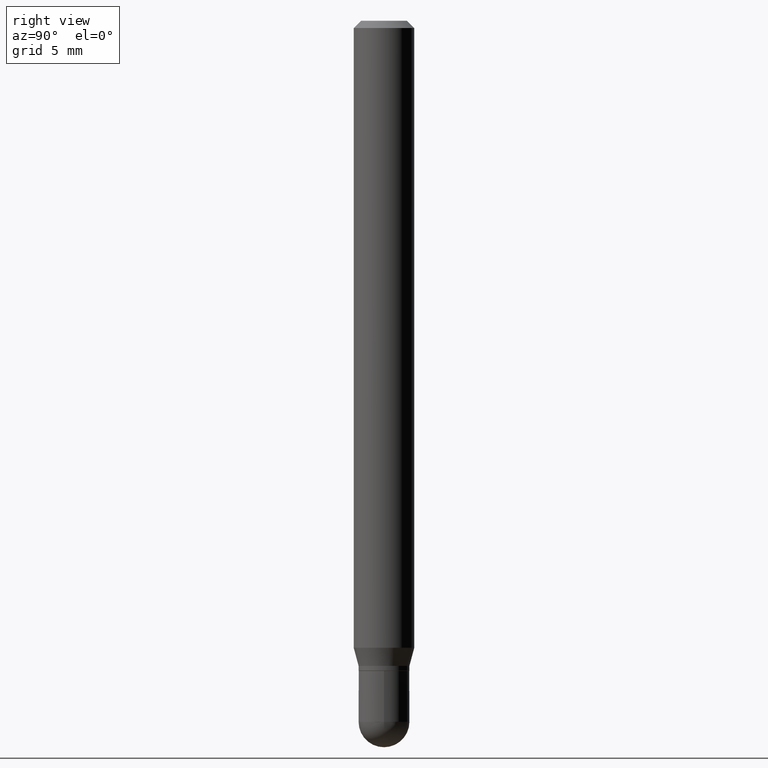
[diagram: clean part render]
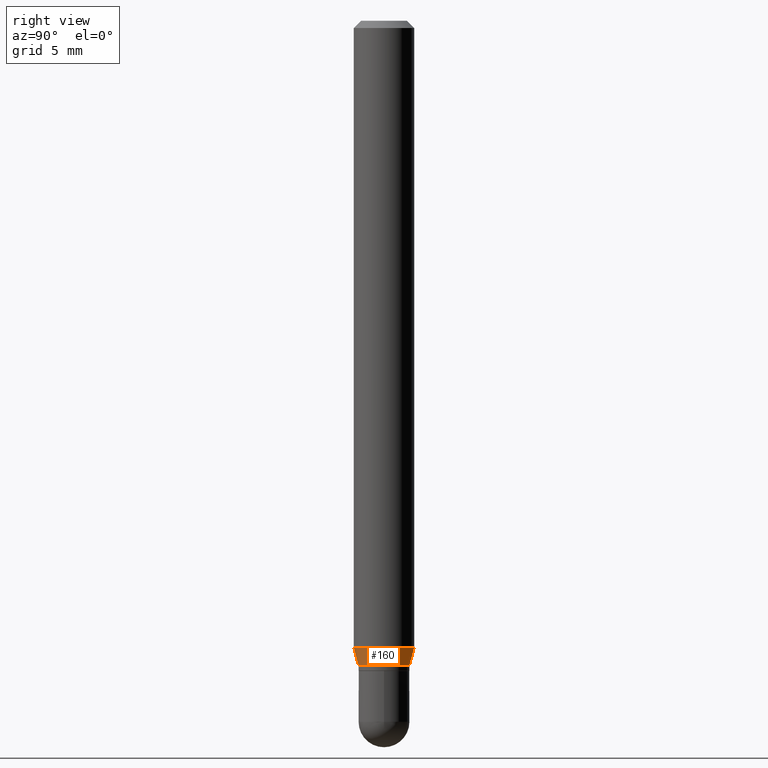
[diagram: same view with one face highlighted and labeled with its STEP entity id]
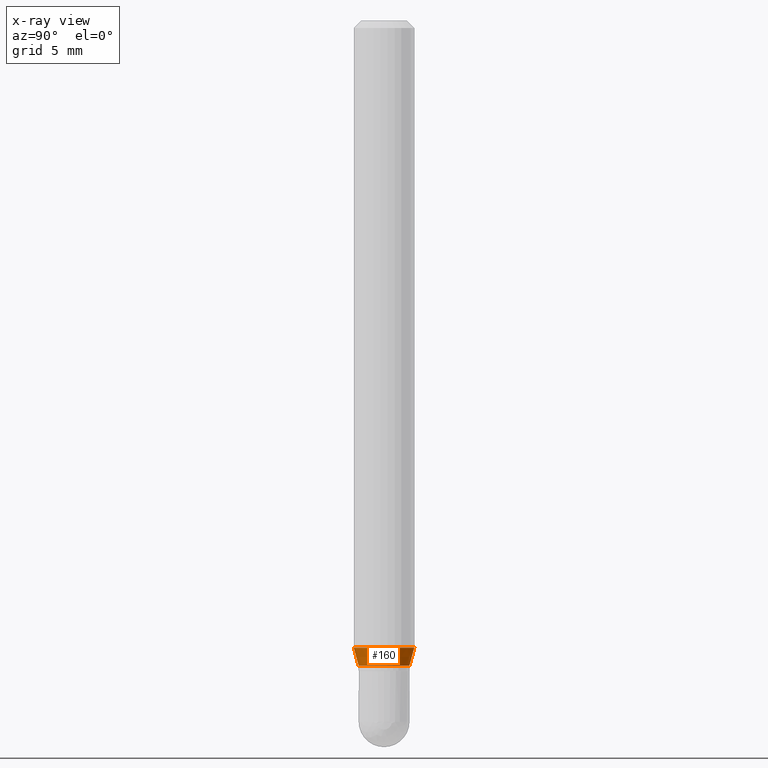
[diagram: x-ray of the same camera — body ghosted, the highlighted face saturated]
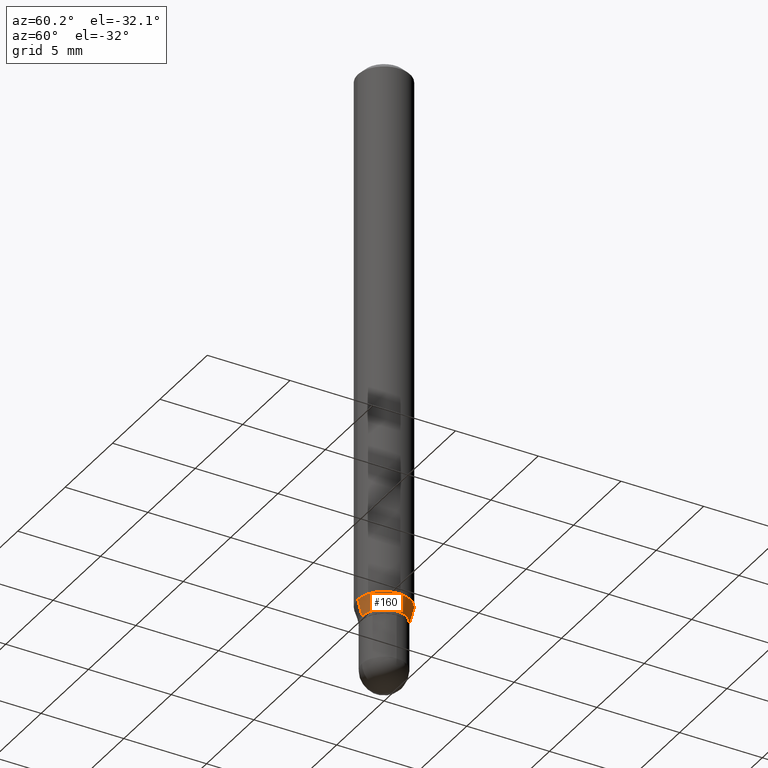
[diagram: same view with one face highlighted and labeled with its STEP entity id]
A machine part, right view. The second image highlights one B-rep face of the part: STEP entity #160.
The next image is the same camera in x-ray: the body ghosted, the highlighted face saturated — about 0% of this face is hidden behind the body in this view.
A second angle (auxiliary view) of the same face is appended — the face is thin or edge-on in the first view.
In plain terms, the highlighted conical surface has half-angle 15 deg.
Its self-contained STEP definition (entity closure, byte-faithful):
#11 = DIRECTION ( 'NONE',  ( -2.445568885019191806E-29, 3.491338020256645256E-15, 1.000000000000000000 ) ) ;
#24 = DIRECTION ( 'NONE',  ( 1.839019923739591243E-15, 0.2588190451025236816, 0.9659258262890674240 ) ) ;
#32 = DIRECTION ( 'NONE',  ( -2.445568885019191806E-29, 3.491338020256645256E-15, 1.000000000000000000 ) ) ;
#47 = VECTOR ( 'NONE', #24, 39.37007874015748143 ) ;
#61 = LINE ( 'NONE', #493, #170 ) ;
#77 = CARTESIAN_POINT ( 'NONE',  ( 3.166227881522550846E-29, -4.520163734201902903E-15, -1.294679491924310977 ) ) ;
#79 = AXIS2_PLACEMENT_3D ( 'NONE', #77, #11, #81 ) ;
#81 = DIRECTION ( 'NONE',  ( -6.982962677686265922E-15, -1.000000000000000000, 4.370956789862821150E-15 ) ) ;
#82 = EDGE_CURVE ( 'NONE', #209, #478, #61, .T. ) ;
#89 = VERTEX_POINT ( 'NONE', #222 ) ;
#98 = AXIS2_PLACEMENT_3D ( 'NONE', #214, #131, #286 ) ;
#115 = VERTEX_POINT ( 'NONE', #458 ) ;
#131 = DIRECTION ( 'NONE',  ( -2.445568885019191806E-29, 3.491338020256645256E-15, 1.000000000000000000 ) ) ;
#160 = ADVANCED_FACE ( 'NONE', ( #455 ), #252, .T. ) ;
#169 = ORIENTED_EDGE ( 'NONE', *, *, #340, .F. ) ;
#170 = VECTOR ( 'NONE', #501, 39.37007874015748143 ) ;
#180 = DIRECTION ( 'NONE',  ( -6.982962677686265922E-15, -1.000000000000000000, 5.203519987931939406E-15 ) ) ;
#200 = EDGE_CURVE ( 'NONE', #115, #89, #220, .T. ) ;
#209 = VERTEX_POINT ( 'NONE', #332 ) ;
#214 = CARTESIAN_POINT ( 'NONE',  ( 3.257497754845563606E-29, -4.650462242981852244E-15, -1.332000000000000073 ) ) ;
#220 = LINE ( 'NONE', #373, #47 ) ;
#222 = CARTESIAN_POINT ( 'NONE',  ( 4.440892098500943678E-16, 0.06249999999999550360, -1.294679491924311199 ) ) ;
#252 = CONICAL_SURFACE ( 'NONE', #98, 0.05249999999999990091, 0.2617993877991489637 ) ;
#275 = ORIENTED_EDGE ( 'NONE', *, *, #82, .F. ) ;
#283 = EDGE_CURVE ( 'NONE', #209, #115, #325, .T. ) ;
#286 = DIRECTION ( 'NONE',  ( -6.982962677686265922E-15, -1.000000000000000000, 5.203519987931939406E-15 ) ) ;
#311 = AXIS2_PLACEMENT_3D ( 'NONE', #386, #32, #180 ) ;
#322 = ORIENTED_EDGE ( 'NONE', *, *, #283, .T. ) ;
#325 = CIRCLE ( 'NONE', #311, 0.05249999999999990091 ) ;
#332 = CARTESIAN_POINT ( 'NONE',  ( -3.666055405784957321E-16, -0.05250000000000455691, -1.331999999999999851 ) ) ;
#340 = EDGE_CURVE ( 'NONE', #478, #89, #472, .T. ) ;
#345 = CARTESIAN_POINT ( 'NONE',  ( -4.364351673553597698E-16, -0.06250000000000449640, -1.294679491924310755 ) ) ;
#373 = CARTESIAN_POINT ( 'NONE',  ( 3.730349362740843847E-16, 0.05249999999999524491, -1.332000000000000517 ) ) ;
#386 = CARTESIAN_POINT ( 'NONE',  ( 3.257497754845563606E-29, -4.650462242981852244E-15, -1.332000000000000073 ) ) ;
#439 = EDGE_LOOP ( 'NONE', ( #322, #510, #169, #275 ) ) ;
#455 = FACE_OUTER_BOUND ( 'NONE', #439, .T. ) ;
#458 = CARTESIAN_POINT ( 'NONE',  ( 4.085620730620894256E-16, 0.05249999999999524491, -1.332000000000000517 ) ) ;
#472 = CIRCLE ( 'NONE', #79, 0.06250000000000000000 ) ;
#478 = VERTEX_POINT ( 'NONE', #345 ) ;
#493 = CARTESIAN_POINT ( 'NONE',  ( -3.666055405784957321E-16, -0.05250000000000455691, -1.331999999999999851 ) ) ;
#501 = DIRECTION ( 'NONE',  ( -1.807323732225321067E-15, -0.2588190451025169092, 0.9659258262890693114 ) ) ;
#510 = ORIENTED_EDGE ( 'NONE', *, *, #200, .T. ) ;